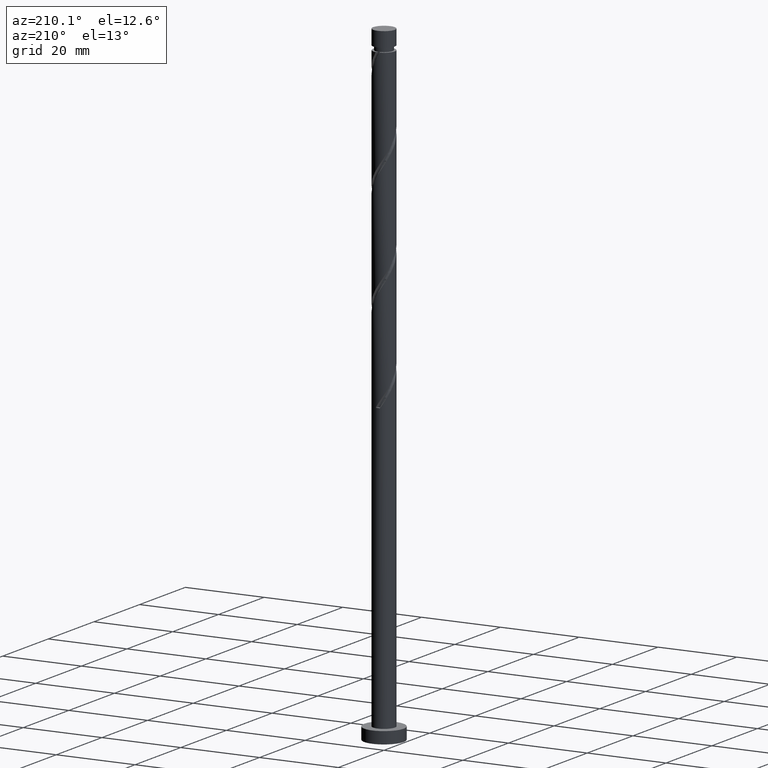
[diagram: clean part render]
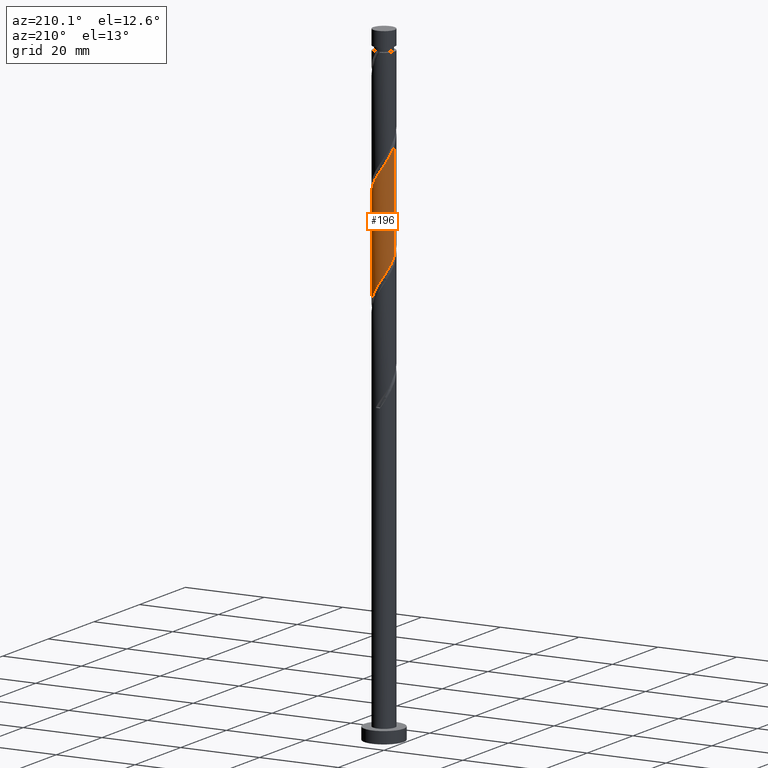
[diagram: same view with one face highlighted and labeled with its STEP entity id]
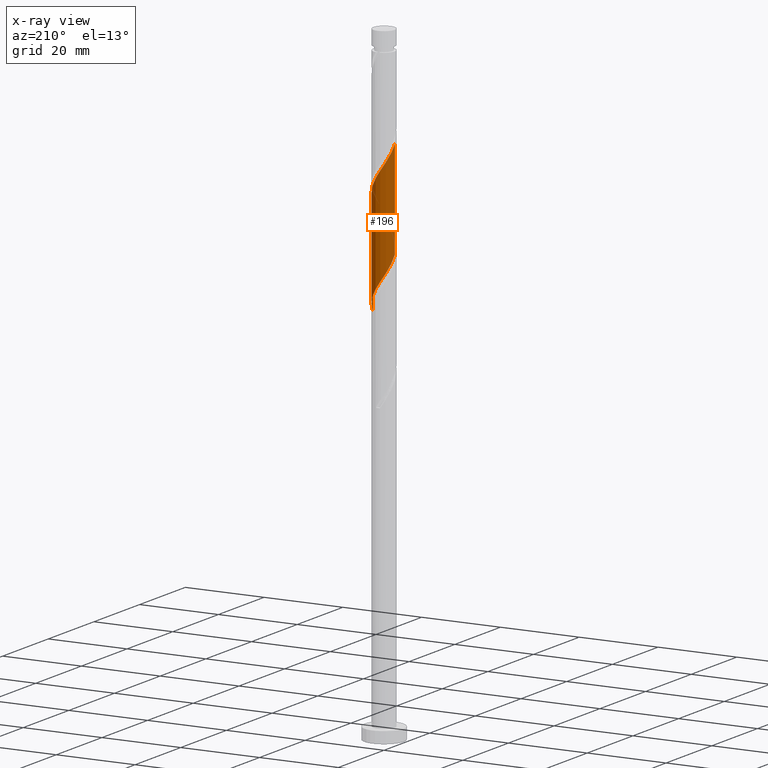
[diagram: x-ray of the same camera — body ghosted, the highlighted face saturated]
A machine part, auxiliary view. The second image highlights one B-rep face of the part: STEP entity #196.
The next image is the same camera in x-ray: the body ghosted, the highlighted face saturated — about 0% of this face is hidden behind the body in this view.
In plain terms, the highlighted cylindrical surface (edge-blend (fillet) strip) has radius 2.75 mm, axis along (-0, -0, -1).
Its self-contained STEP definition (entity closure, byte-faithful):
#18 = CARTESIAN_POINT ( 'NONE',  ( 2.749999999999999556, -3.170845989141239485E-15, 95.99989401384699761 ) ) ;
#98 = VERTEX_POINT ( 'NONE', #1179 ) ;
#99 = CARTESIAN_POINT ( 'NONE',  ( 0.5472430904086421632, 2.695000000000000284, 101.8171062012127663 ) ) ;
#100 = CARTESIAN_POINT ( 'NONE',  ( 2.750000000000000000, -3.170845989141239485E-15, 95.99989401384699761 ) ) ;
#103 = DIRECTION ( 'NONE',  ( -1.000000000000000000, 0.000000000000000000, 0.000000000000000000 ) ) ;
#104 = CARTESIAN_POINT ( 'NONE',  ( 2.224125231963132610, 1.617333284312470365, 123.6352880193945794 ) ) ;
#106 = CARTESIAN_POINT ( 'NONE',  ( -2.745449597776791872, 0.1581344556611559704, 109.0898334739400468 ) ) ;
#116 = CARTESIAN_POINT ( 'NONE',  ( -2.395113114716218128, 1.351270945337905927, 132.1201365042430496 ) ) ;
#170 = ORIENTED_EDGE ( 'NONE', *, *, #732, .T. ) ;
#185 = DIRECTION ( 'NONE',  ( -0.000000000000000000, -0.000000000000000000, -1.000000000000000000 ) ) ;
#196 = ADVANCED_FACE ( 'NONE', ( #712 ), #212, .T. ) ;
#212 = CYLINDRICAL_SURFACE ( 'NONE', #912, 2.750000000000000000 ) ;
#230 = CARTESIAN_POINT ( 'NONE',  ( 0.2341933405814793923, 2.740009758965706421, 127.2716516557582054 ) ) ;
#237 = CARTESIAN_POINT ( 'NONE',  ( -1.633964688862562964, 2.246996415572371841, 130.3019546860612934 ) ) ;
#244 = LINE ( 'NONE', #1653, #963 ) ;
#254 = CARTESIAN_POINT ( 'NONE',  ( 2.589396545961874629, 1.006905667779018243, 97.57468195878853123 ) ) ;
#311 = CARTESIAN_POINT ( 'NONE',  ( 1.633964688862560966, 2.246996415572367845, 99.99892438303093911 ) ) ;
#338 = CARTESIAN_POINT ( 'NONE',  ( -1.365166370583079658, 2.419742605459063611, 104.8474092315157833 ) ) ;
#358 = CARTESIAN_POINT ( 'NONE',  ( 2.456662652402867408, 1.297552352829637323, 123.0292274133339987 ) ) ;
#366 = CARTESIAN_POINT ( 'NONE',  ( -0.9347255927250954777, 2.616318322060513069, 129.0898334739400752 ) ) ;
#368 = CARTESIAN_POINT ( 'NONE',  ( -0.6281472692551449688, 2.706337839991914240, 103.6352880193946078 ) ) ;
#389 = CARTESIAN_POINT ( 'NONE',  ( 2.749999999999999556, 0.3149545503090930842, 96.48585396681828286 ) ) ;
#416 = EDGE_CURVE ( 'NONE', #1078, #98, #244, .T. ) ;
#438 =( BOUNDED_CURVE ( )  B_SPLINE_CURVE ( 2, ( #556, #1050, #106, #1115, #994, #1639, #1629, #625, #1504, #338, #472, #368, #719, #1228, #99, #1449, #930, #311, #1330, #1283, #1526, #254, #1269, #389, #18 ),
 .UNSPECIFIED., .F., .T. ) 
 B_SPLINE_CURVE_WITH_KNOTS ( ( 3, 2, 2, 2, 2, 2, 2, 2, 2, 2, 2, 2, 3 ),
 ( 0.6795252162417513286, 0.6818181818181817677, 0.6931818181818182323, 0.7045454545454545858, 0.7159090909090909394, 0.7272727272727272929, 0.7386363636363636465, 0.7500000000000000000, 0.7613636363636363535, 0.7727272727272727071, 0.7840909090909090606, 0.7954545454545454142, 0.8045252162417511066 ),
 .UNSPECIFIED. ) 
 CURVE ( )  GEOMETRIC_REPRESENTATION_ITEM ( )  RATIONAL_B_SPLINE_CURVE ( ( 0.9061101570135604577, 0.9072237824201426770, 0.9090909090909201629, 0.8998376744372224012, 0.9090909090909201629, 0.8998376744372224012, 0.9090909090909201629, 0.8998376744372224012, 0.9090909090909201629, 0.8998376744372224012, 0.9090909090909201629, 0.8998376744372224012, 0.9090909090909201629, 0.8998376744372224012, 0.9090909090909201629, 0.8998376744372224012, 0.9090909090909201629, 0.8998376744372224012, 0.9090909090909201629, 0.8998376744372224012, 0.9090909090909201629, 0.8998376744372224012, 0.9090909090909201629, 0.9017048011080001091, 0.9061101570135603467 ) ) 
 REPRESENTATION_ITEM ( '' )  );
#459 = CARTESIAN_POINT ( 'NONE',  ( 0.000000000000000000, 0.000000000000000000, 160.0000000000000000 ) ) ;
#472 = CARTESIAN_POINT ( 'NONE',  ( -0.9966568199191122579, 2.563040222725488704, 104.2413486254551742 ) ) ;
#494 = CARTESIAN_POINT ( 'NONE',  ( -0.5472430904086412751, 2.695000000000004281, 128.4837728678793951 ) ) ;
#506 = CARTESIAN_POINT ( 'NONE',  ( 2.589687973961440015, 0.9252114339541627208, 122.4231668072733612 ) ) ;
#518 = VERTEX_POINT ( 'NONE', #822 ) ;
#525 = CARTESIAN_POINT ( 'NONE',  ( 2.750000000000003553, 0.07913269794051813744, 121.0897497266301173 ) ) ;
#556 = CARTESIAN_POINT ( 'NONE',  ( -2.750000000000000000, 2.587529981704879547E-15, 109.3332273471803404 ) ) ;
#625 = CARTESIAN_POINT ( 'NONE',  ( -1.991587811523394480, 1.937114215795302519, 106.0595304436370157 ) ) ;
#630 = CARTESIAN_POINT ( 'NONE',  ( -2.589396545961877738, 1.006905667779021574, 132.7261971103036728 ) ) ;
#712 = FACE_OUTER_BOUND ( 'NONE', #984, .T. ) ;
#719 = CARTESIAN_POINT ( 'NONE',  ( -0.2341933405814784763, 2.740009758965701980, 103.0292274133339703 ) ) ;
#725 = DIRECTION ( 'NONE',  ( -0.000000000000000000, -0.000000000000000000, -1.000000000000000000 ) ) ;
#732 = EDGE_CURVE ( 'NONE', #518, #908, #827, .T. ) ;
#736 = CARTESIAN_POINT ( 'NONE',  ( -0.1597605880921877108, 2.773681677939495493, 127.8777122618188429 ) ) ;
#743 = CARTESIAN_POINT ( 'NONE',  ( -1.917397186166560852, 1.971316319234581060, 130.9080152921218314 ) ) ;
#822 = CARTESIAN_POINT ( 'NONE',  ( 2.750000000000004441, 1.705077560198580878E-15, 120.9676517219119063 ) ) ;
#827 = LINE ( 'NONE', #1345, #833 ) ;
#833 = VECTOR ( 'NONE', #185, 1000.000000000000000 ) ;
#847 = CARTESIAN_POINT ( 'NONE',  ( 2.722713295520012178, 0.5528705150786884515, 121.8171062012127948 ) ) ;
#849 = EDGE_CURVE ( 'NONE', #518, #1078, #1116, .T. ) ;
#856 = CARTESIAN_POINT ( 'NONE',  ( 0.9966568199191135902, 2.563040222725492701, 126.0595304436369872 ) ) ;
#862 = CARTESIAN_POINT ( 'NONE',  ( -1.284345140793828666, 2.431657368816442233, 129.6958940800006417 ) ) ;
#881 = CARTESIAN_POINT ( 'NONE',  ( 2.750000000000004441, 1.705077560198580878E-15, 120.9676517219119063 ) ) ;
#908 = VERTEX_POINT ( 'NONE', #100 ) ;
#912 = AXIS2_PLACEMENT_3D ( 'NONE', #459, #725, #103 ) ;
#930 = CARTESIAN_POINT ( 'NONE',  ( 1.284345140793827778, 2.431657368816437792, 100.6049849890915340 ) ) ;
#963 = VECTOR ( 'NONE', #1163, 1000.000000000000000 ) ;
#984 = EDGE_LOOP ( 'NONE', ( #1087, #170, #1502, #1379 ) ) ;
#994 = CARTESIAN_POINT ( 'NONE',  ( -2.589687973961434686, 0.9252114339541620547, 107.8777122618188145 ) ) ;
#1002 = CARTESIAN_POINT ( 'NONE',  ( -2.678791222997729093, 0.6217536357676994863, 133.3322577163642677 ) ) ;
#1050 = CARTESIAN_POINT ( 'NONE',  ( -2.750000000000000000, 0.07913269794051323858, 109.2111293424621010 ) ) ;
#1055 = CARTESIAN_POINT ( 'NONE',  ( -2.750000000000003553, -1.847167356881795820E-15, 134.3009850552452065 ) ) ;
#1078 = VERTEX_POINT ( 'NONE', #1055 ) ;
#1087 = ORIENTED_EDGE ( 'NONE', *, *, #849, .F. ) ;
#1115 = CARTESIAN_POINT ( 'NONE',  ( -2.722713295520007737, 0.5528705150786886735, 108.4837728678794093 ) ) ;
#1116 =( BOUNDED_CURVE ( )  B_SPLINE_CURVE ( 2, ( #881, #525, #1535, #847, #506, #358, #104, #1645, #1636, #1501, #856, #1378, #230, #736, #494, #366, #862, #237, #743, #1251, #116, #630, #1002, #1519, #1603 ),
 .UNSPECIFIED., .F., .T. ) 
 B_SPLINE_CURVE_WITH_KNOTS ( ( 3, 2, 2, 2, 2, 2, 2, 2, 2, 2, 2, 2, 3 ),
 ( 0.4295252162417514952, 0.4318181818181817677, 0.4431818181818182323, 0.4545454545454545858, 0.4659090909090909394, 0.4772727272727272929, 0.4886363636363636465, 0.5000000000000000000, 0.5113636363636363535, 0.5227272727272727071, 0.5340909090909091717, 0.5454545454545454142, 0.5545252162417517727 ),
 .UNSPECIFIED. ) 
 CURVE ( )  GEOMETRIC_REPRESENTATION_ITEM ( )  RATIONAL_B_SPLINE_CURVE ( ( 0.9061101570135661198, 0.9072237824201482281, 0.9090909090909256030, 0.8998376744372277303, 0.9090909090909256030, 0.8998376744372277303, 0.9090909090909256030, 0.8998376744372277303, 0.9090909090909256030, 0.8998376744372277303, 0.9090909090909256030, 0.8998376744372277303, 0.9090909090909256030, 0.8998376744372277303, 0.9090909090909256030, 0.8998376744372277303, 0.9090909090909256030, 0.8998376744372277303, 0.9090909090909256030, 0.8998376744372277303, 0.9090909090909256030, 0.8998376744372277303, 0.9090909090909256030, 0.9017048011080048830, 0.9061101570135663419 ) ) 
 REPRESENTATION_ITEM ( '' )  );
#1163 = DIRECTION ( 'NONE',  ( -0.000000000000000000, -0.000000000000000000, -1.000000000000000000 ) ) ;
#1179 = CARTESIAN_POINT ( 'NONE',  ( -2.750000000000000000, 2.587529981704879547E-15, 109.3332273471803404 ) ) ;
#1228 = CARTESIAN_POINT ( 'NONE',  ( 0.1597605880921882382, 2.773681677939491053, 102.4231668072733612 ) ) ;
#1251 = CARTESIAN_POINT ( 'NONE',  ( -2.200829683470559850, 1.695636222896790279, 131.5140758981824831 ) ) ;
#1269 = CARTESIAN_POINT ( 'NONE',  ( 2.678791222997725541, 0.6217536357676973768, 96.96862135272787953 ) ) ;
#1283 = CARTESIAN_POINT ( 'NONE',  ( 2.200829683470555853, 1.695636222896788059, 98.78680317090972096 ) ) ;
#1330 = CARTESIAN_POINT ( 'NONE',  ( 1.917397186166557965, 1.971316319234578396, 99.39286377697034425 ) ) ;
#1345 = CARTESIAN_POINT ( 'NONE',  ( 2.750000000000000000, 3.367778697655221012E-16, 160.0000000000000000 ) ) ;
#1363 = EDGE_CURVE ( 'NONE', #98, #908, #438, .T. ) ;
#1378 = CARTESIAN_POINT ( 'NONE',  ( 0.6281472692551467452, 2.706337839991918237, 126.6655910496976247 ) ) ;
#1379 = ORIENTED_EDGE ( 'NONE', *, *, #416, .F. ) ;
#1449 = CARTESIAN_POINT ( 'NONE',  ( 0.9347255927250948115, 2.616318322060508628, 101.2110455951521431 ) ) ;
#1501 = CARTESIAN_POINT ( 'NONE',  ( 1.365166370583081434, 2.419742605459066720, 125.4534698375764350 ) ) ;
#1502 = ORIENTED_EDGE ( 'NONE', *, *, #1363, .F. ) ;
#1504 = CARTESIAN_POINT ( 'NONE',  ( -1.678377091053236958, 2.178428410627182288, 105.4534698375763924 ) ) ;
#1519 = CARTESIAN_POINT ( 'NONE',  ( -2.750000000000007550, 0.3149545503090754317, 133.8150251022739212 ) ) ;
#1526 = CARTESIAN_POINT ( 'NONE',  ( 2.395113114716214131, 1.351270945337903706, 98.18074256484911189 ) ) ;
#1535 = CARTESIAN_POINT ( 'NONE',  ( 2.745449597776796313, 0.1581344556611551377, 121.2110455951521715 ) ) ;
#1603 = CARTESIAN_POINT ( 'NONE',  ( -2.750000000000003553, -1.847167356881795820E-15, 134.3009850552452065 ) ) ;
#1629 = CARTESIAN_POINT ( 'NONE',  ( -2.224125231963128613, 1.617333284312469255, 106.6655910496975963 ) ) ;
#1636 = CARTESIAN_POINT ( 'NONE',  ( 1.678377091053239401, 2.178428410627185396, 124.8474092315158117 ) ) ;
#1639 = CARTESIAN_POINT ( 'NONE',  ( -2.456662652402862523, 1.297552352829637101, 107.2716516557582054 ) ) ;
#1645 = CARTESIAN_POINT ( 'NONE',  ( 1.991587811523398699, 1.937114215795303629, 124.2413486254551884 ) ) ;
#1653 = CARTESIAN_POINT ( 'NONE',  ( -2.750000000000000000, 0.000000000000000000, 160.0000000000000000 ) ) ;